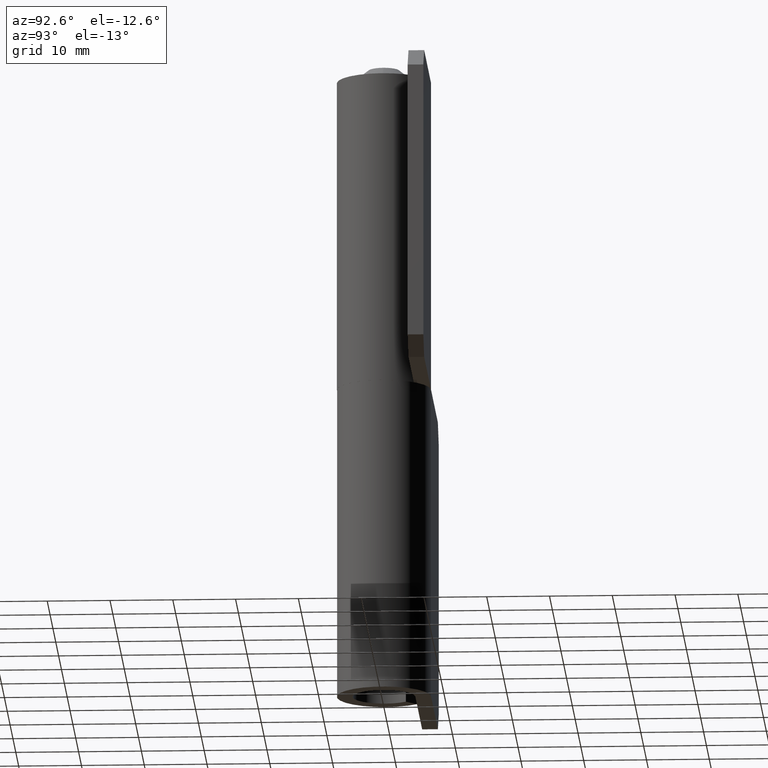
[diagram: clean part render]
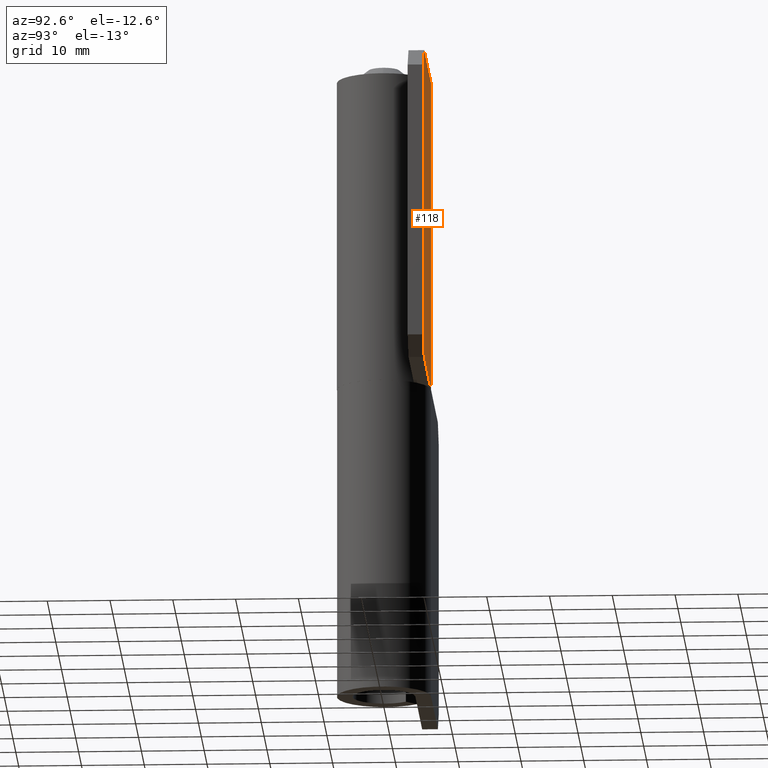
[diagram: same view with one face highlighted and labeled with its STEP entity id]
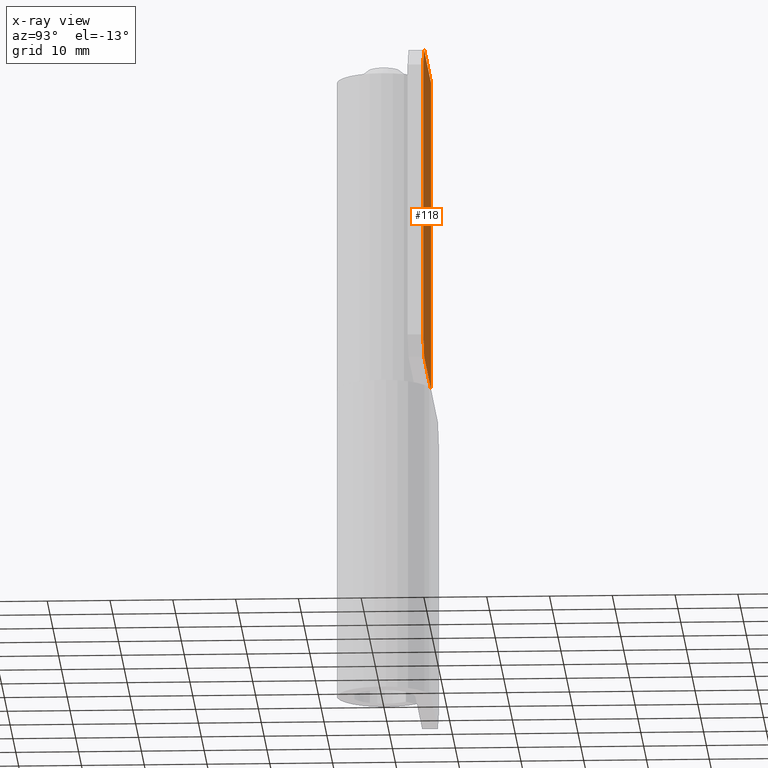
[diagram: x-ray of the same camera — body ghosted, the highlighted face saturated]
A machine part, auxiliary view. The second image highlights one B-rep face of the part: STEP entity #118.
The next image is the same camera in x-ray: the body ghosted, the highlighted face saturated — about 0% of this face is hidden behind the body in this view.
In plain terms, the highlighted planar face has unit normal (0, -1, 0).
Its self-contained STEP definition (entity closure, byte-faithful):
#118=ADVANCED_FACE('',(#200),#199,.F.);
#199=PLANE('',#442);
#200=FACE_OUTER_BOUND('',#443,.T.);
#439=CARTESIAN_POINT('',(-2.70000000000E+000,7.50000000000E+000,5.50000000000E+001));
#440=DIRECTION('',(0.00000000000E+000,-1.00000000000E+000,0.00000000000E+000));
#441=DIRECTION('',(0.00000000000E+000,0.00000000000E+000,-1.00000000000E+000));
#442=AXIS2_PLACEMENT_3D('',#439,#440,#441);
#443=EDGE_LOOP('',(#596,#597,#598,#599,#600,#601));
#596=ORIENTED_EDGE('',*,*,#711,.T.);
#597=ORIENTED_EDGE('',*,*,#698,.T.);
#598=ORIENTED_EDGE('',*,*,#724,.F.);
#599=ORIENTED_EDGE('',*,*,#702,.T.);
#600=ORIENTED_EDGE('',*,*,#717,.F.);
#601=ORIENTED_EDGE('',*,*,#725,.T.);
#698=EDGE_CURVE('',#763,#764,#765,.T.);
#702=EDGE_CURVE('',#791,#792,#793,.T.);
#711=EDGE_CURVE('',#854,#763,#855,.T.);
#717=EDGE_CURVE('',#895,#792,#896,.T.);
#724=EDGE_CURVE('',#791,#764,#943,.T.);
#725=EDGE_CURVE('',#895,#854,#949,.T.);
#763=VERTEX_POINT('',#1195);
#764=VERTEX_POINT('',#1196);
#765=LINE('',#1197,#1198);
#791=VERTEX_POINT('',#1211);
#792=VERTEX_POINT('',#1212);
#793=LINE('',#1213,#1214);
#854=VERTEX_POINT('',#1251);
#855=LINE('',#1252,#1253);
#895=VERTEX_POINT('',#1278);
#896=LINE('',#1279,#1280);
#943=LINE('',#1309,#1310);
#949=LINE('',#1312,#1313);
#1195=CARTESIAN_POINT('',(2.40000000000E+001,7.50000000000E+000,5.00000000000E+001));
#1196=CARTESIAN_POINT('',(2.70000000000E+001,7.50000000000E+000,4.70000000000E+001));
#1197=CARTESIAN_POINT('',(2.40000000000E+001,7.50000000000E+000,5.00000000000E+001));
#1198=VECTOR('',#1199,4.24264068712E+000);
#1199=DIRECTION('',(7.07106781187E-001,0.00000000000E+000,-7.07106781187E-001));
#1211=CARTESIAN_POINT('',(2.70000000000E+001,7.50000000000E+000,3.00000000000E+000));
#1212=CARTESIAN_POINT('',(2.40000000000E+001,7.50000000000E+000,0.00000000000E+000));
#1213=CARTESIAN_POINT('',(2.70000000000E+001,7.50000000000E+000,3.00000000000E+000));
#1214=VECTOR('',#1215,4.24264068712E+000);
#1215=DIRECTION('',(-7.07106781187E-001,0.00000000000E+000,-7.07106781187E-001));
#1251=CARTESIAN_POINT('',(-1.37772764904E-015,7.50000000000E+000,5.00000000000E+001));
#1252=CARTESIAN_POINT('',(-1.37772764904E-015,7.50000000000E+000,5.00000000000E+001));
#1253=VECTOR('',#1254,2.40000000000E+001);
#1254=DIRECTION('',(1.00000000000E+000,0.00000000000E+000,0.00000000000E+000));
#1278=CARTESIAN_POINT('',(-1.37772764904E-015,7.50000000000E+000,0.00000000000E+000));
#1279=CARTESIAN_POINT('',(-1.37772764904E-015,7.50000000000E+000,0.00000000000E+000));
#1280=VECTOR('',#1281,2.40000000000E+001);
#1281=DIRECTION('',(1.00000000000E+000,0.00000000000E+000,0.00000000000E+000));
#1309=CARTESIAN_POINT('',(2.70000000000E+001,7.50000000000E+000,3.00000000000E+000));
#1310=VECTOR('',#1311,4.40000000000E+001);
#1311=DIRECTION('',(0.00000000000E+000,0.00000000000E+000,1.00000000000E+000));
#1312=CARTESIAN_POINT('',(-1.37772764904E-015,7.50000000000E+000,0.00000000000E+000));
#1313=VECTOR('',#1314,5.00000000000E+001);
#1314=DIRECTION('',(0.00000000000E+000,0.00000000000E+000,1.00000000000E+000));